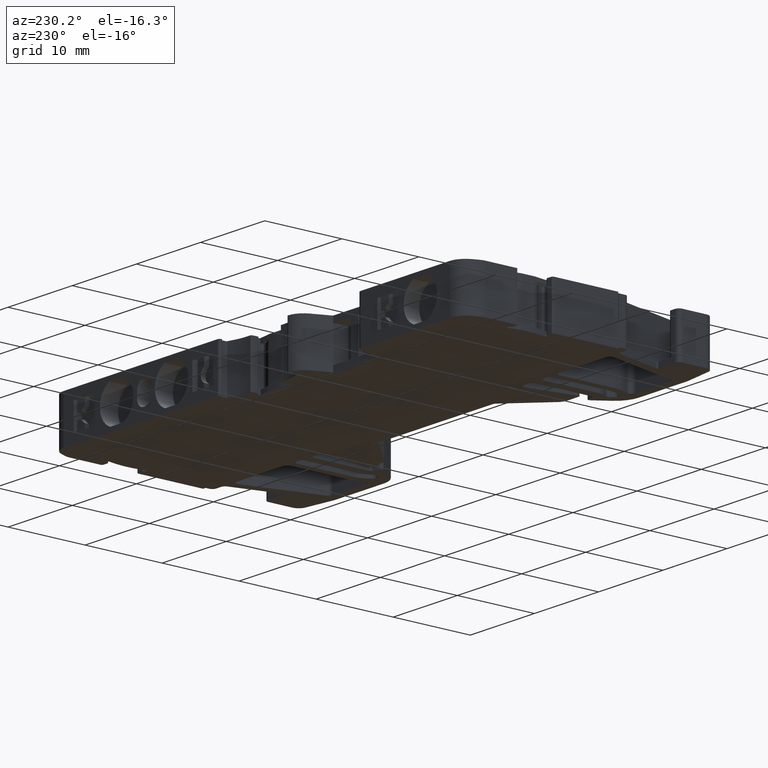
[diagram: clean part render]
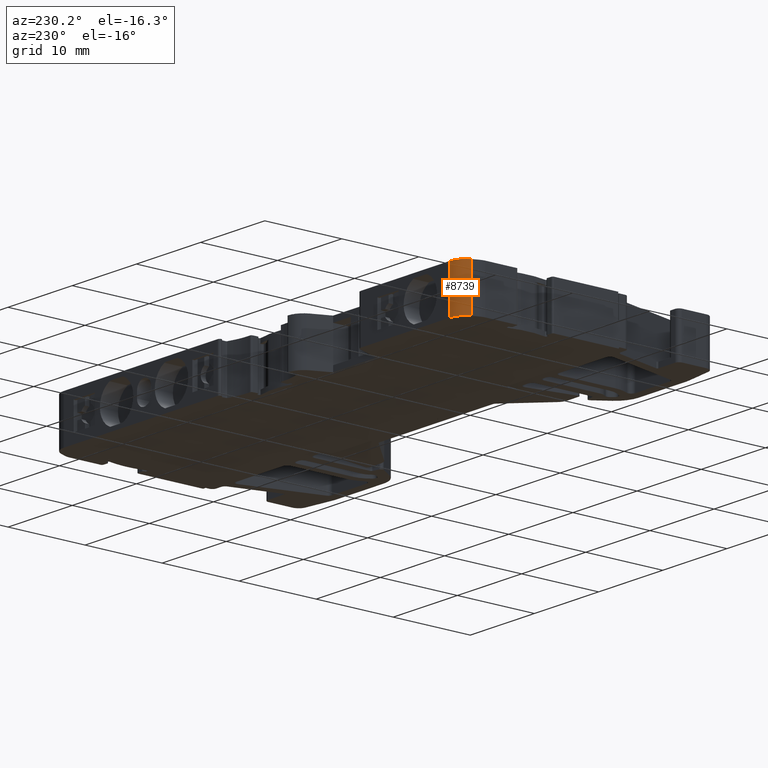
[diagram: same view with one face highlighted and labeled with its STEP entity id]
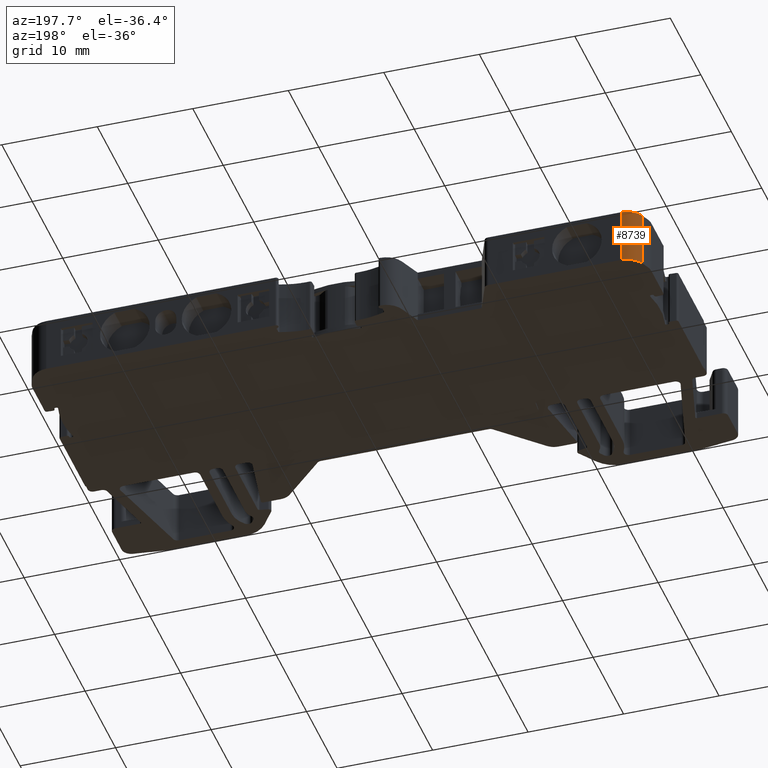
[diagram: same view with one face highlighted and labeled with its STEP entity id]
A machine part, auxiliary view. The second image highlights one B-rep face of the part: STEP entity #8739.
A second angle (auxiliary view) of the same face is appended — the face is thin or edge-on in the first view.
In plain terms, the highlighted cylindrical surface (edge-blend (fillet) strip) has radius 2 mm, axis along (0, 0, 1).
Its self-contained STEP definition (entity closure, byte-faithful):
#40 = LINE ( 'NONE', #41, #8079 ) ;
#41 = CARTESIAN_POINT ( 'NONE',  ( -34.38010561016857700, -89.85278202546170700, -68.12189434494692400 ) ) ;
#77 = DIRECTION ( 'NONE',  ( 0.0000000000000000000, 0.0000000000000000000, 1.000000000000000000 ) ) ;
#78 = DIRECTION ( 'NONE',  ( 1.000000000000000000, 0.0000000000000000000, 0.0000000000000000000 ) ) ;
#92 = DIRECTION ( 'NONE',  ( 0.0000000000000000000, 0.0000000000000000000, 1.000000000000000000 ) ) ;
#96 = CARTESIAN_POINT ( 'NONE',  ( -32.53234181493196800, -90.61813747034520400, -0.04999999999999449300 ) ) ;
#316 = DIRECTION ( 'NONE',  ( -0.0000000000000000000, -0.0000000000000000000, -1.000000000000000000 ) ) ;
#329 = LINE ( 'NONE', #330, #8175 ) ;
#330 = CARTESIAN_POINT ( 'NONE',  ( -32.53234181493196800, -88.61813747034520400, -68.12189434494692400 ) ) ;
#4115 = EDGE_LOOP ( 'NONE', ( #4429, #4401, #4438, #4302 ) ) ;
#4302 = ORIENTED_EDGE ( 'NONE', *, *, #9032, .T. ) ;
#4401 = ORIENTED_EDGE ( 'NONE', *, *, #8943, .T. ) ;
#4429 = ORIENTED_EDGE ( 'NONE', *, *, #8945, .T. ) ;
#4438 = ORIENTED_EDGE ( 'NONE', *, *, #9040, .T. ) ;
#5227 = CYLINDRICAL_SURFACE ( 'NONE', #9682, 2.000000000000001800 ) ;
#5253 = CARTESIAN_POINT ( 'NONE',  ( -32.53234181493196800, -90.61813747034520400, -68.12189434494692400 ) ) ;
#5272 = FACE_OUTER_BOUND ( 'NONE', #4115, .T. ) ;
#5276 = DIRECTION ( 'NONE',  ( 0.0000000000000000000, 0.0000000000000000000, 1.000000000000000000 ) ) ;
#5292 = DIRECTION ( 'NONE',  ( 1.000000000000000000, 0.0000000000000000000, 0.0000000000000000000 ) ) ;
#6046 = CARTESIAN_POINT ( 'NONE',  ( -34.38010561016857700, -89.85278202546173500, -0.04999999999999449300 ) ) ;
#6402 = CARTESIAN_POINT ( 'NONE',  ( -32.53234181493196800, -88.61813747034530300, -0.04999999999999449300 ) ) ;
#6417 = CARTESIAN_POINT ( 'NONE',  ( -32.53234181493194700, -88.61813747034518900, 5.849999999999994300 ) ) ;
#6479 = CARTESIAN_POINT ( 'NONE',  ( -34.38010561016858400, -89.85278202546173500, 5.849999999999996100 ) ) ;
#8042 = CIRCLE ( 'NONE', #8084, 2.000000000000001800 ) ;
#8079 = VECTOR ( 'NONE', #92, 1000.000000000000000 ) ;
#8084 = AXIS2_PLACEMENT_3D ( 'NONE', #96, #77, #78 ) ;
#8175 = VECTOR ( 'NONE', #316, 1000.000000000000000 ) ;
#8186 = CIRCLE ( 'NONE', #8189, 2.000000000000001800 ) ;
#8189 = AXIS2_PLACEMENT_3D ( 'NONE', #14804, #14777, #14783 ) ;
#8739 = ADVANCED_FACE ( 'NONE', ( #5272 ), #5227, .T. ) ;
#8943 = EDGE_CURVE ( 'NONE', #14756, #13575, #40, .T. ) ;
#8945 = EDGE_CURVE ( 'NONE', #13532, #14756, #8042, .T. ) ;
#9032 = EDGE_CURVE ( 'NONE', #13535, #13532, #329, .T. ) ;
#9040 = EDGE_CURVE ( 'NONE', #13575, #13535, #8186, .T. ) ;
#9682 = AXIS2_PLACEMENT_3D ( 'NONE', #5253, #5276, #5292 ) ;
#13532 = VERTEX_POINT ( 'NONE', #6402 ) ;
#13535 = VERTEX_POINT ( 'NONE', #6417 ) ;
#13575 = VERTEX_POINT ( 'NONE', #6479 ) ;
#14756 = VERTEX_POINT ( 'NONE', #6046 ) ;
#14777 = DIRECTION ( 'NONE',  ( -0.0000000000000000000, -0.0000000000000000000, -1.000000000000000000 ) ) ;
#14783 = DIRECTION ( 'NONE',  ( 1.000000000000000000, 0.0000000000000000000, 0.0000000000000000000 ) ) ;
#14804 = CARTESIAN_POINT ( 'NONE',  ( -32.53234181493196800, -90.61813747034520400, 5.849999999999994300 ) ) ;